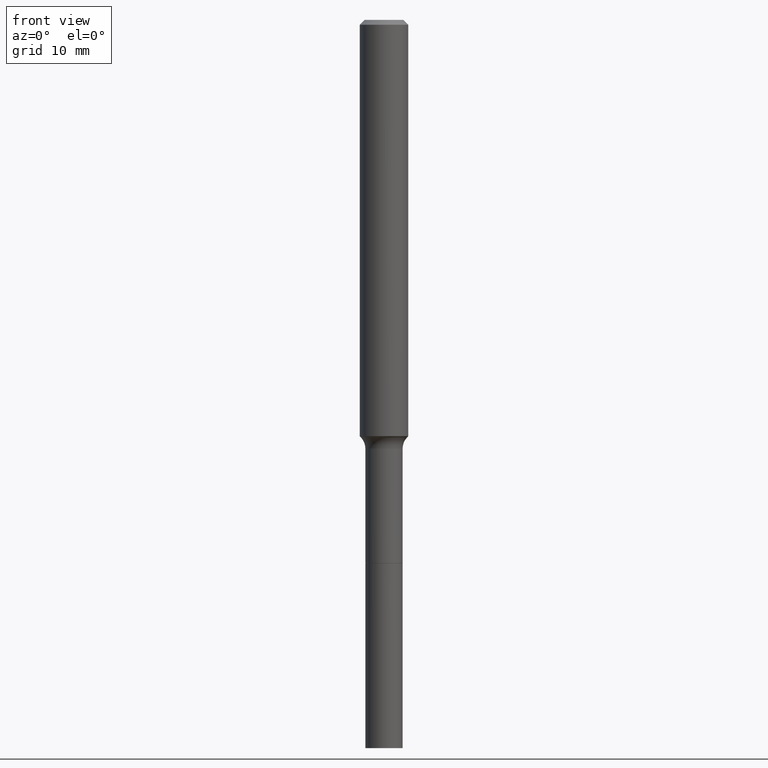
[diagram: clean part render]
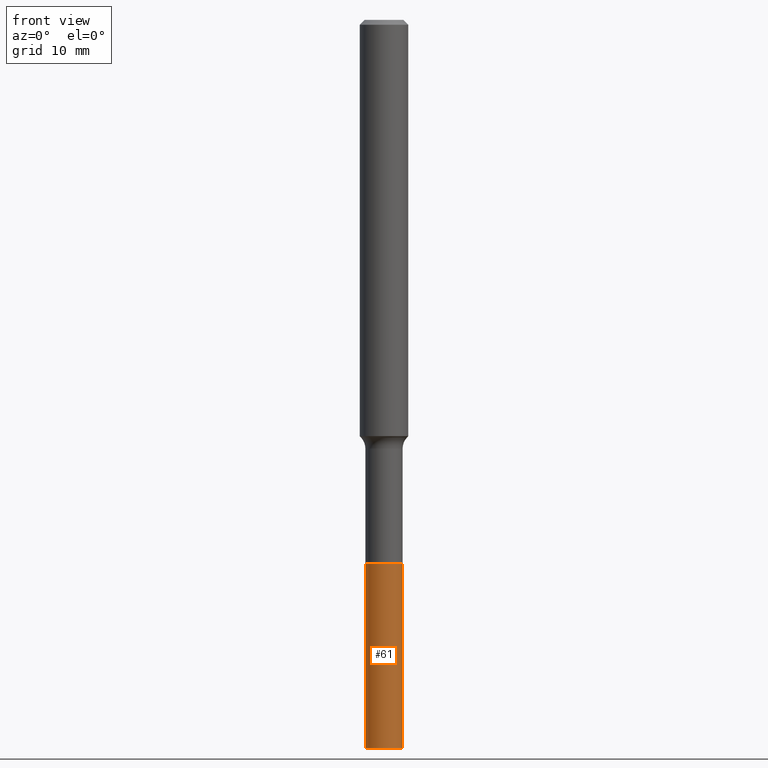
[diagram: same view with one face highlighted and labeled with its STEP entity id]
A machine part, front view. The second image highlights one B-rep face of the part: STEP entity #61.
In plain terms, the highlighted cylindrical surface (edge-blend (fillet) strip) has radius 2.3 mm, axis along (-0, 0, 1).
Its self-contained STEP definition (entity closure, byte-faithful):
#6 = VECTOR ( 'NONE', #412, 39.37007874015748143 ) ;
#19 = CIRCLE ( 'NONE', #403, 0.09055000000000022753 ) ;
#26 = VECTOR ( 'NONE', #293, 39.37007874015748143 ) ;
#27 = CARTESIAN_POINT ( 'NONE',  ( 0.09055000000000022753, -1.300367309838740854E-14, -3.543299999999999894 ) ) ;
#36 = AXIS2_PLACEMENT_3D ( 'NONE', #109, #148, #317 ) ;
#52 = DIRECTION ( 'NONE',  ( -2.445468806185136597E-29, 3.491481338843145583E-15, 1.000000000000000000 ) ) ;
#53 = LINE ( 'NONE', #128, #26 ) ;
#61 = ADVANCED_FACE ( 'NONE', ( #439 ), #82, .T. ) ;
#82 = CYLINDRICAL_SURFACE ( 'NONE', #205, 0.09055000000000011651 ) ;
#88 = LINE ( 'NONE', #256, #6 ) ;
#94 = ORIENTED_EDGE ( 'NONE', *, *, #326, .F. ) ;
#109 = CARTESIAN_POINT ( 'NONE',  ( 6.466553164195356287E-29, -9.232524104302930594E-15, -2.644299999999999873 ) ) ;
#128 = CARTESIAN_POINT ( 'NONE',  ( 0.09055000000000011651, -9.864831374767423641E-15, -2.644299999999999873 ) ) ;
#131 = CARTESIAN_POINT ( 'NONE',  ( -0.09055000000000000548, -1.015854851888215298E-14, -2.644299999999999873 ) ) ;
#148 = DIRECTION ( 'NONE',  ( -2.445468806185136597E-29, 3.491481338843145583E-15, 1.000000000000000000 ) ) ;
#163 = CARTESIAN_POINT ( 'NONE',  ( 8.665029620955794069E-29, -1.237136582792291707E-14, -3.543299999999999894 ) ) ;
#166 = CARTESIAN_POINT ( 'NONE',  ( 0.09055000000000000548, -9.864831374767423641E-15, -2.644299999999999873 ) ) ;
#168 = CARTESIAN_POINT ( 'NONE',  ( 6.466553164195356287E-29, -9.232524104302930594E-15, -2.644299999999999873 ) ) ;
#205 = AXIS2_PLACEMENT_3D ( 'NONE', #168, #52, #374 ) ;
#220 = ORIENTED_EDGE ( 'NONE', *, *, #251, .T. ) ;
#242 = ORIENTED_EDGE ( 'NONE', *, *, #507, .T. ) ;
#251 = EDGE_CURVE ( 'NONE', #481, #426, #53, .T. ) ;
#256 = CARTESIAN_POINT ( 'NONE',  ( -0.09055000000000011651, -8.589127657072158949E-15, -2.644299999999999873 ) ) ;
#258 = ORIENTED_EDGE ( 'NONE', *, *, #380, .F. ) ;
#274 = VERTEX_POINT ( 'NONE', #391 ) ;
#293 = DIRECTION ( 'NONE',  ( -2.445468806185136877E-29, 3.491481338843145188E-15, 1.000000000000000000 ) ) ;
#296 = DIRECTION ( 'NONE',  ( 1.000000000000000000, -6.982962677686260400E-15, 0.000000000000000000 ) ) ;
#317 = DIRECTION ( 'NONE',  ( 1.000000000000000000, -6.982962677686277755E-15, 0.000000000000000000 ) ) ;
#326 = EDGE_CURVE ( 'NONE', #366, #426, #389, .T. ) ;
#366 = VERTEX_POINT ( 'NONE', #131 ) ;
#374 = DIRECTION ( 'NONE',  ( 1.000000000000000000, -6.982962677686269077E-15, 0.000000000000000000 ) ) ;
#380 = EDGE_CURVE ( 'NONE', #274, #366, #88, .T. ) ;
#385 = EDGE_LOOP ( 'NONE', ( #258, #242, #220, #94 ) ) ;
#389 = CIRCLE ( 'NONE', #36, 0.09055000000000000548 ) ;
#391 = CARTESIAN_POINT ( 'NONE',  ( -0.09055000000000022753, -1.015854851888214982E-14, -3.543299999999999894 ) ) ;
#403 = AXIS2_PLACEMENT_3D ( 'NONE', #163, #512, #296 ) ;
#412 = DIRECTION ( 'NONE',  ( -2.445468806185136877E-29, 3.491481338843145188E-15, 1.000000000000000000 ) ) ;
#426 = VERTEX_POINT ( 'NONE', #166 ) ;
#439 = FACE_OUTER_BOUND ( 'NONE', #385, .T. ) ;
#481 = VERTEX_POINT ( 'NONE', #27 ) ;
#507 = EDGE_CURVE ( 'NONE', #274, #481, #19, .T. ) ;
#512 = DIRECTION ( 'NONE',  ( -2.445468806185136597E-29, 3.491481338843145583E-15, 1.000000000000000000 ) ) ;